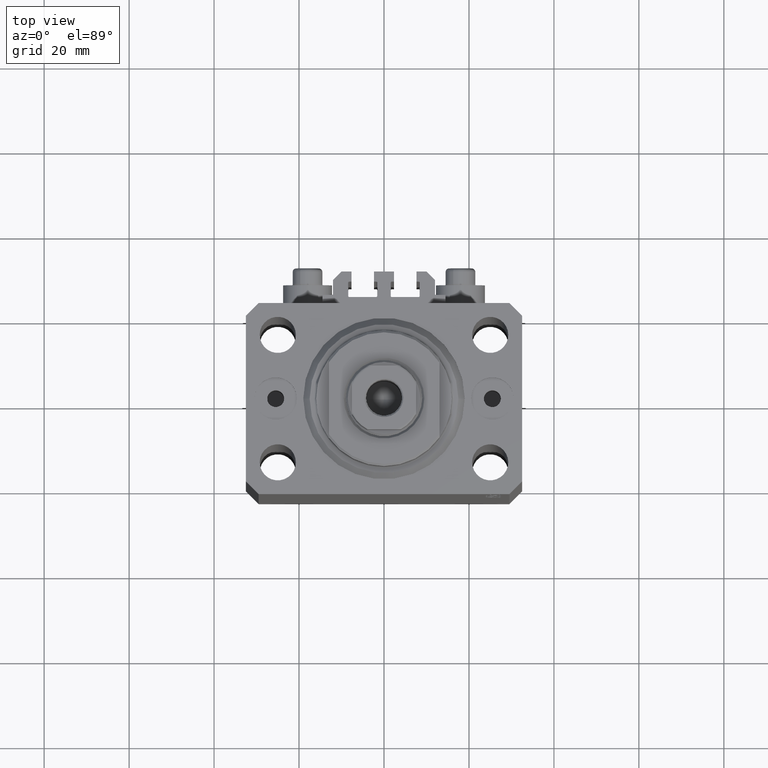
[diagram: clean part render]
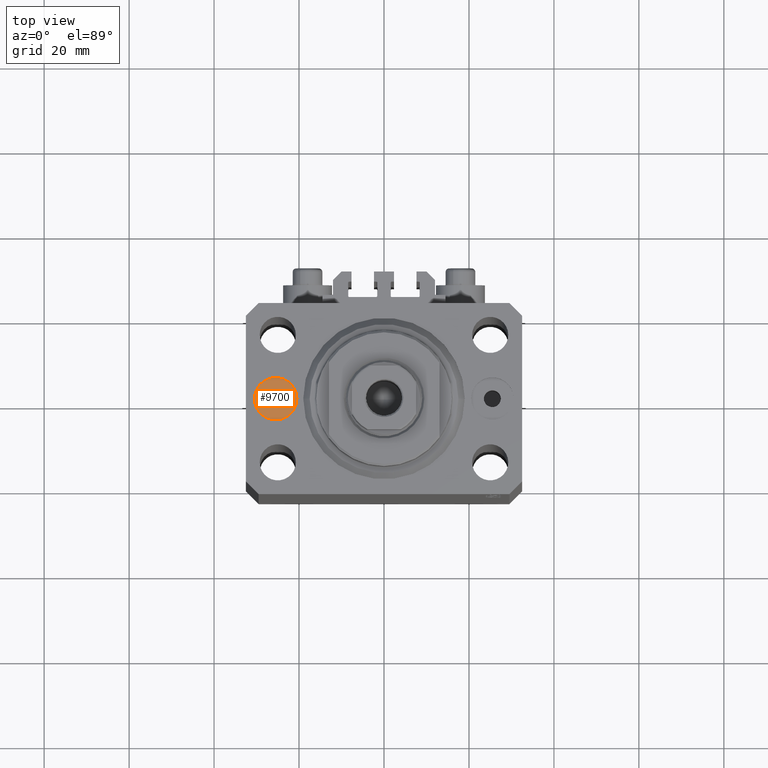
[diagram: same view with one face highlighted and labeled with its STEP entity id]
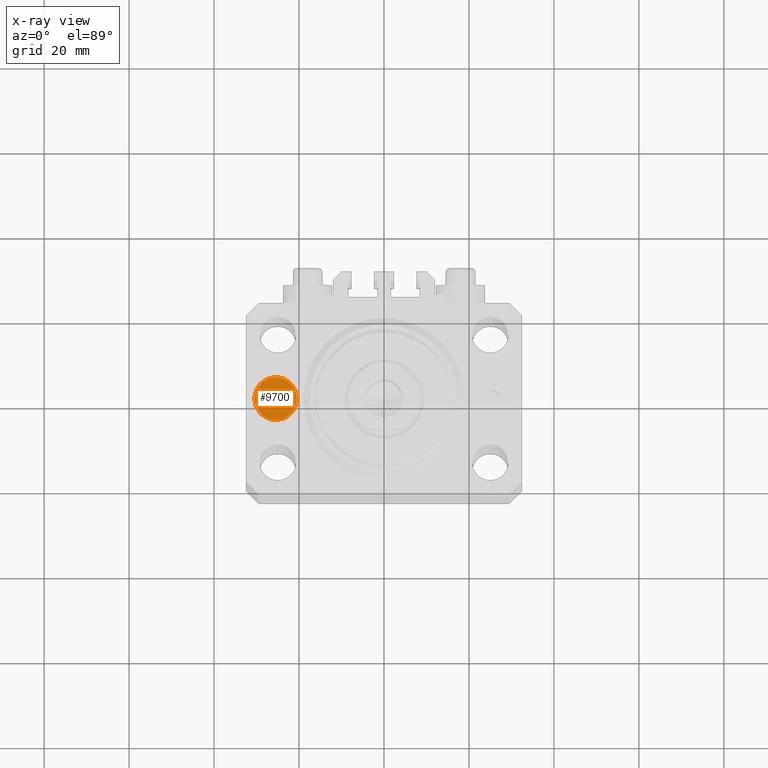
[diagram: x-ray of the same camera — body ghosted, the highlighted face saturated]
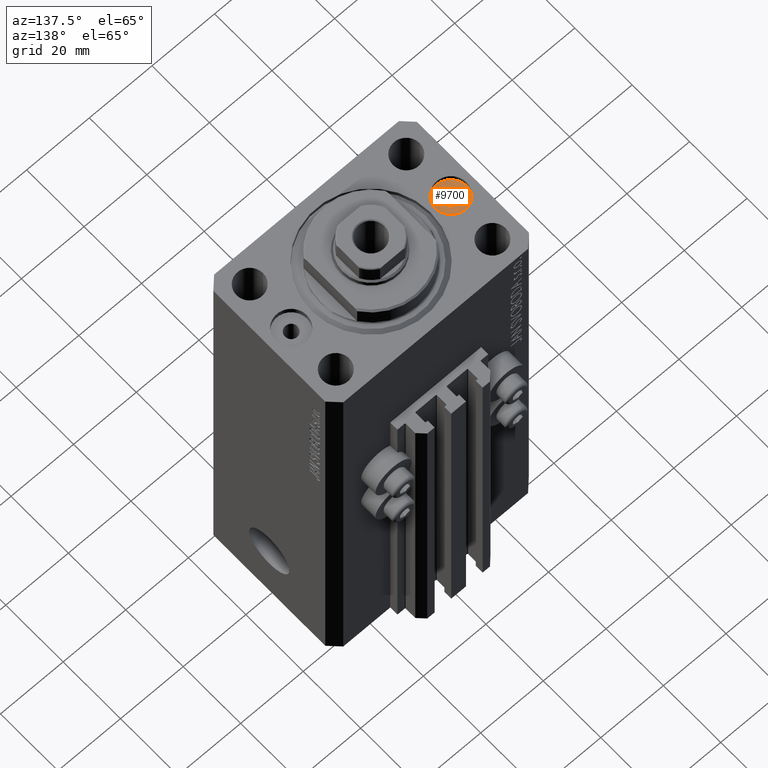
[diagram: same view with one face highlighted and labeled with its STEP entity id]
A machine part, top view. The second image highlights one B-rep face of the part: STEP entity #9700.
The next image is the same camera in x-ray: the body ghosted, the highlighted face saturated — about 0% of this face is hidden behind the body in this view.
A second angle (auxiliary view) of the same face is appended — the face is thin or edge-on in the first view.
In plain terms, the highlighted planar face has unit normal (0, 0, 1).
Its self-contained STEP definition (entity closure, byte-faithful):
#1543 = DIRECTION ( 'NONE',  ( 0.000000000000000000, 0.000000000000000000, 1.000000000000000000 ) ) ;
#2098 = ORIENTED_EDGE ( 'NONE', *, *, #24885, .F. ) ;
#3455 = VERTEX_POINT ( 'NONE', #37219 ) ;
#8715 = DIRECTION ( 'NONE',  ( 1.000000000000000000, 0.000000000000000000, 0.000000000000000000 ) ) ;
#8950 = CARTESIAN_POINT ( 'NONE',  ( -25.50000000000000000, 0.000000000000000000, -1.899999999999999911 ) ) ;
#9402 = DIRECTION ( 'NONE',  ( 0.000000000000000000, 0.000000000000000000, 1.000000000000000000 ) ) ;
#9467 = EDGE_CURVE ( 'NONE', #3455, #28339, #18280, .T. ) ;
#9700 = ADVANCED_FACE ( 'NONE', ( #28310, #13308 ), #39075, .T. ) ;
#10199 = DIRECTION ( 'NONE',  ( 1.000000000000000000, 0.000000000000000000, -0.000000000000000000 ) ) ;
#10694 = CARTESIAN_POINT ( 'NONE',  ( -23.49999999999666045, 0.000000000000000000, -1.899999999999999911 ) ) ;
#12317 = VERTEX_POINT ( 'NONE', #10694 ) ;
#13183 = DIRECTION ( 'NONE',  ( 0.000000000000000000, 0.000000000000000000, 1.000000000000000000 ) ) ;
#13308 = FACE_OUTER_BOUND ( 'NONE', #20813, .T. ) ;
#15657 = EDGE_CURVE ( 'NONE', #33288, #12317, #47209, .T. ) ;
#15743 = EDGE_LOOP ( 'NONE', ( #2098, #33205 ) ) ;
#16033 = EDGE_CURVE ( 'NONE', #28339, #3455, #27366, .T. ) ;
#18280 = CIRCLE ( 'NONE', #44965, 5.000000000003342215 ) ;
#19639 = DIRECTION ( 'NONE',  ( 1.000000000000000000, 0.000000000000000000, 0.000000000000000000 ) ) ;
#20813 = EDGE_LOOP ( 'NONE', ( #35186, #29432 ) ) ;
#22213 = CARTESIAN_POINT ( 'NONE',  ( -25.50000000000000000, 0.000000000000000000, -1.899999999999999911 ) ) ;
#24885 = EDGE_CURVE ( 'NONE', #12317, #33288, #37560, .T. ) ;
#26616 = AXIS2_PLACEMENT_3D ( 'NONE', #42080, #9402, #19639 ) ;
#27366 = CIRCLE ( 'NONE', #44920, 5.000000000003342215 ) ;
#28310 = FACE_BOUND ( 'NONE', #15743, .T. ) ;
#28339 = VERTEX_POINT ( 'NONE', #32215 ) ;
#29432 = ORIENTED_EDGE ( 'NONE', *, *, #16033, .T. ) ;
#32215 = CARTESIAN_POINT ( 'NONE',  ( -30.50000000000333955, 6.123233995740857512E-16, -1.899999999999999911 ) ) ;
#33205 = ORIENTED_EDGE ( 'NONE', *, *, #15657, .F. ) ;
#33208 = DIRECTION ( 'NONE',  ( 1.000000000000000000, 0.000000000000000000, 0.000000000000000000 ) ) ;
#33288 = VERTEX_POINT ( 'NONE', #37922 ) ;
#35186 = ORIENTED_EDGE ( 'NONE', *, *, #9467, .T. ) ;
#35713 = DIRECTION ( 'NONE',  ( 0.000000000000000000, 0.000000000000000000, 1.000000000000000000 ) ) ;
#36793 = DIRECTION ( 'NONE',  ( 0.000000000000000000, 0.000000000000000000, 1.000000000000000000 ) ) ;
#37219 = CARTESIAN_POINT ( 'NONE',  ( -20.49999999999665690, 0.000000000000000000, -1.899999999999999911 ) ) ;
#37560 = CIRCLE ( 'NONE', #38346, 2.000000000003339551 ) ;
#37922 = CARTESIAN_POINT ( 'NONE',  ( -27.50000000000333600, 2.449293598298799123E-16, -1.899999999999999911 ) ) ;
#38346 = AXIS2_PLACEMENT_3D ( 'NONE', #8950, #1543, #8715 ) ;
#39075 = PLANE ( 'NONE',  #43468 ) ;
#39186 = DIRECTION ( 'NONE',  ( 1.000000000000000000, 0.000000000000000000, 0.000000000000000000 ) ) ;
#42080 = CARTESIAN_POINT ( 'NONE',  ( -25.50000000000000000, 0.000000000000000000, -1.899999999999999911 ) ) ;
#42874 = CARTESIAN_POINT ( 'NONE',  ( -25.50000000000000000, 0.000000000000000000, -1.899999999999999911 ) ) ;
#43468 = AXIS2_PLACEMENT_3D ( 'NONE', #42874, #35713, #10199 ) ;
#44920 = AXIS2_PLACEMENT_3D ( 'NONE', #22213, #36793, #33208 ) ;
#44965 = AXIS2_PLACEMENT_3D ( 'NONE', #45866, #13183, #39186 ) ;
#45866 = CARTESIAN_POINT ( 'NONE',  ( -25.50000000000000000, 0.000000000000000000, -1.899999999999999911 ) ) ;
#47209 = CIRCLE ( 'NONE', #26616, 2.000000000003339551 ) ;